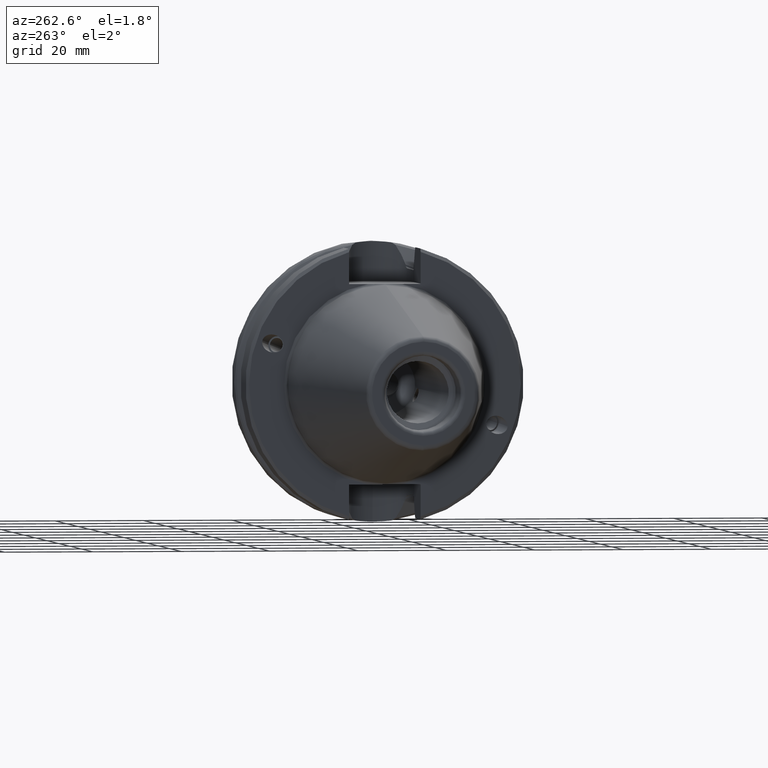
[diagram: clean part render]
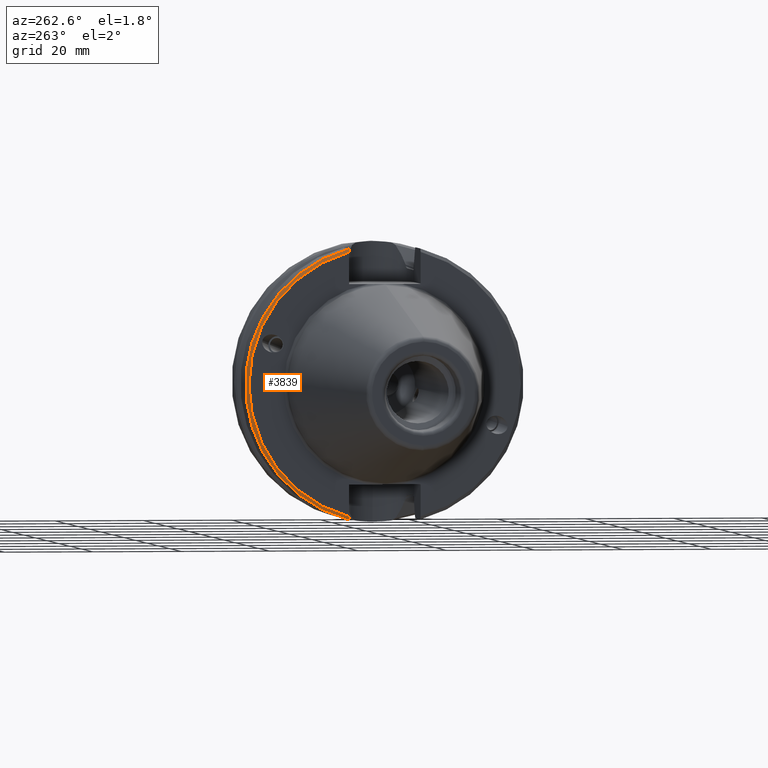
[diagram: same view with one face highlighted and labeled with its STEP entity id]
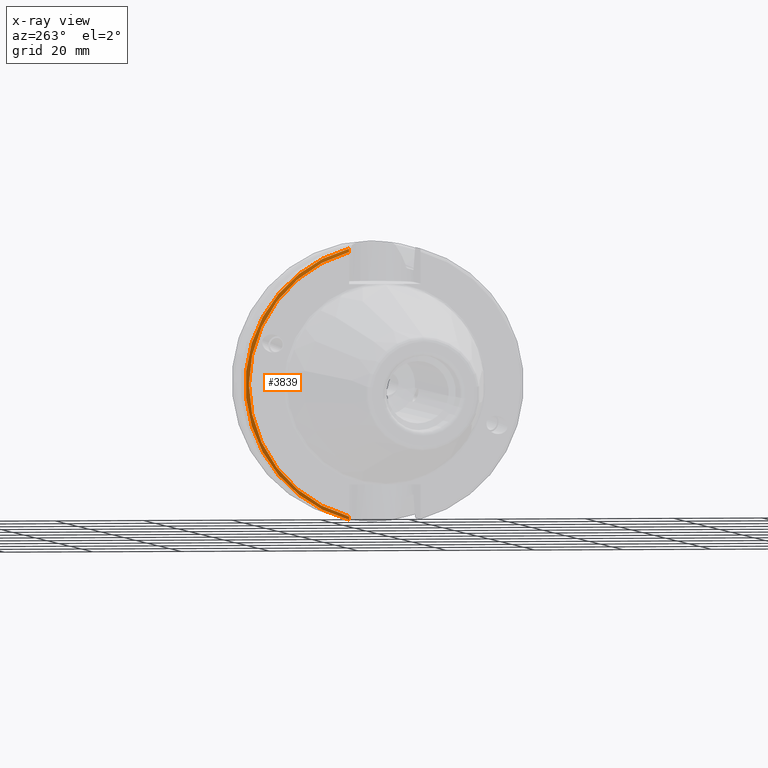
[diagram: x-ray of the same camera — body ghosted, the highlighted face saturated]
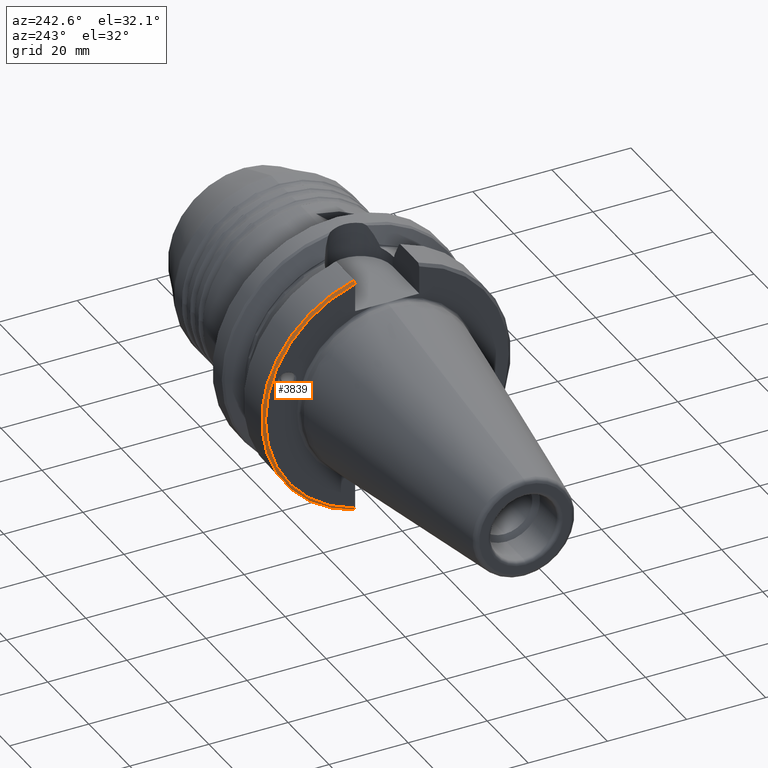
[diagram: same view with one face highlighted and labeled with its STEP entity id]
A machine part, auxiliary view. The second image highlights one B-rep face of the part: STEP entity #3839.
The next image is the same camera in x-ray: the body ghosted, the highlighted face saturated — about 0% of this face is hidden behind the body in this view.
A second angle (auxiliary view) of the same face is appended — the face is thin or edge-on in the first view.
In plain terms, the highlighted conical surface has half-angle 55 deg.
Its self-contained STEP definition (entity closure, byte-faithful):
#90 = CIRCLE ( 'NONE', #2464, 30.77442599663092400 ) ;
#321 = CARTESIAN_POINT ( 'NONE',  ( 67.56657038391520600, 8.095000000000000600, -29.93724685198257500 ) ) ;
#375 = DIRECTION ( 'NONE',  ( 0.0000000000000000000, 0.0000000000000000000, 1.000000000000000000 ) ) ;
#520 = EDGE_CURVE ( 'NONE', #7475, #7281, #5904, .T. ) ;
#523 = CARTESIAN_POINT ( 'NONE',  ( 67.89999999999879800, 8.095000000000000600, 30.43019236301000100 ) ) ;
#550 = CARTESIAN_POINT ( 'NONE',  ( 67.40000000000000600, 8.095000000000000600, 29.69067648980253800 ) ) ;
#704 = EDGE_CURVE ( 'NONE', #7281, #3131, #5629, .T. ) ;
#755 = EDGE_LOOP ( 'NONE', ( #7373, #7349, #3006, #6553 ) ) ;
#1002 = B_SPLINE_CURVE_WITH_KNOTS ( 'NONE', 3,
 ( #2658, #321, #3996, #2073 ),
 .UNSPECIFIED., .F., .F.,
 ( 4, 4 ),
 ( 0.0000000000000000000, 0.0008926834414979309000 ),
 .UNSPECIFIED. ) ;
#2073 = CARTESIAN_POINT ( 'NONE',  ( 67.89999999999879800, 8.095000000000000600, -30.43019236301000100 ) ) ;
#2351 = DIRECTION ( 'NONE',  ( 1.000000000000000000, -0.0000000000000000000, -0.0000000000000000000 ) ) ;
#2464 = AXIS2_PLACEMENT_3D ( 'NONE', #6189, #6781, #375 ) ;
#2658 = CARTESIAN_POINT ( 'NONE',  ( 67.40000000000000600, 8.095000000000000600, -29.69067648980253800 ) ) ;
#2943 = CARTESIAN_POINT ( 'NONE',  ( 67.89999999999879800, 8.095000000000000600, 30.43019236301000100 ) ) ;
#3006 = ORIENTED_EDGE ( 'NONE', *, *, #704, .F. ) ;
#3131 = VERTEX_POINT ( 'NONE', #4154 ) ;
#3137 = FACE_OUTER_BOUND ( 'NONE', #755, .T. ) ;
#3385 = CARTESIAN_POINT ( 'NONE',  ( 67.89999999999879800, 0.0000000000000000000, 0.0000000000000000000 ) ) ;
#3825 = AXIS2_PLACEMENT_3D ( 'NONE', #4113, #2351, #6430 ) ;
#3839 = ADVANCED_FACE ( 'NONE', ( #3137 ), #7067, .T. ) ;
#3996 = CARTESIAN_POINT ( 'NONE',  ( 67.73323930766125000, 8.095000000000000600, -30.18375067052923900 ) ) ;
#4113 = CARTESIAN_POINT ( 'NONE',  ( 67.89999999999879800, 0.0000000000000000000, 0.0000000000000000000 ) ) ;
#4154 = CARTESIAN_POINT ( 'NONE',  ( 67.40000000000000600, 8.095000000000000600, 29.69067648980253800 ) ) ;
#4512 = DIRECTION ( 'NONE',  ( 1.000000000000000000, -0.0000000000000000000, -0.0000000000000000000 ) ) ;
#4533 = VERTEX_POINT ( 'NONE', #7253 ) ;
#5042 = DIRECTION ( 'NONE',  ( 0.0000000000000000000, 0.0000000000000000000, 1.000000000000000000 ) ) ;
#5113 = EDGE_CURVE ( 'NONE', #4533, #7475, #1002, .T. ) ;
#5586 = AXIS2_PLACEMENT_3D ( 'NONE', #3385, #4512, #5042 ) ;
#5629 = B_SPLINE_CURVE_WITH_KNOTS ( 'NONE', 3,
 ( #523, #6484, #5823, #550 ),
 .UNSPECIFIED., .F., .F.,
 ( 4, 4 ),
 ( 2.634669780790200700E-015, 0.0008926834415005702800 ),
 .UNSPECIFIED. ) ;
#5823 = CARTESIAN_POINT ( 'NONE',  ( 67.56657038391520600, 8.095000000000000600, 29.93724685198257200 ) ) ;
#5904 = CIRCLE ( 'NONE', #5586, 31.48849999999999500 ) ;
#6189 = CARTESIAN_POINT ( 'NONE',  ( 67.40000000000000600, 0.0000000000000000000, 0.0000000000000000000 ) ) ;
#6430 = DIRECTION ( 'NONE',  ( 0.0000000000000000000, 0.0000000000000000000, -1.000000000000000000 ) ) ;
#6484 = CARTESIAN_POINT ( 'NONE',  ( 67.73323930766133600, 8.095000000000848000, 30.18375067052916800 ) ) ;
#6553 = ORIENTED_EDGE ( 'NONE', *, *, #520, .F. ) ;
#6781 = DIRECTION ( 'NONE',  ( -1.000000000000000000, 0.0000000000000000000, 0.0000000000000000000 ) ) ;
#7024 = EDGE_CURVE ( 'NONE', #3131, #4533, #90, .T. ) ;
#7067 = CONICAL_SURFACE ( 'NONE', #3825, 31.48849999999999500, 0.9599310885967083900 ) ;
#7253 = CARTESIAN_POINT ( 'NONE',  ( 67.40000000000000600, 8.095000000000000600, -29.69067648980253800 ) ) ;
#7281 = VERTEX_POINT ( 'NONE', #2943 ) ;
#7349 = ORIENTED_EDGE ( 'NONE', *, *, #7024, .F. ) ;
#7373 = ORIENTED_EDGE ( 'NONE', *, *, #5113, .F. ) ;
#7427 = CARTESIAN_POINT ( 'NONE',  ( 67.89999999999879800, 8.095000000000000600, -30.43019236301000100 ) ) ;
#7475 = VERTEX_POINT ( 'NONE', #7427 ) ;